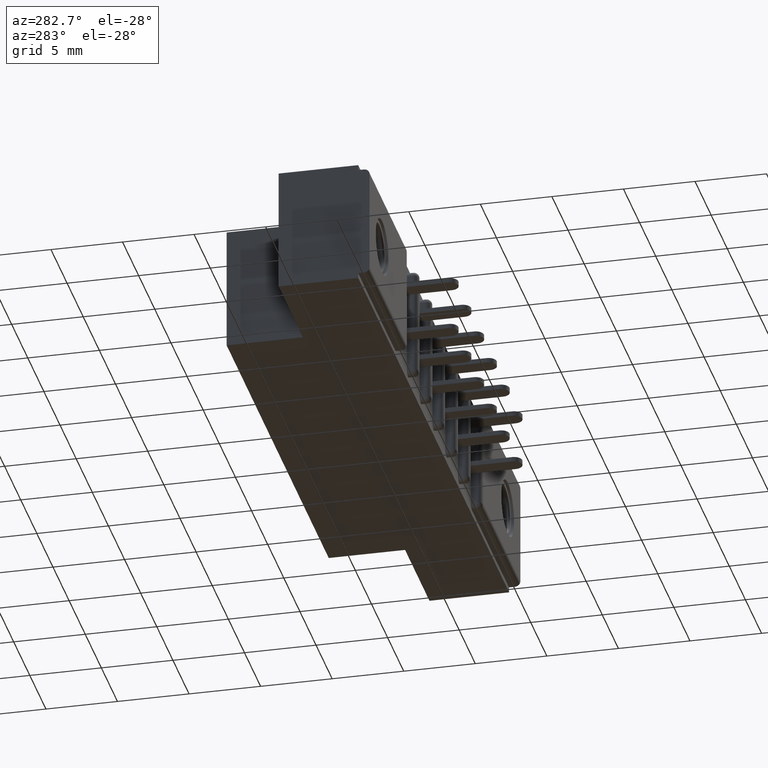
[diagram: clean part render]
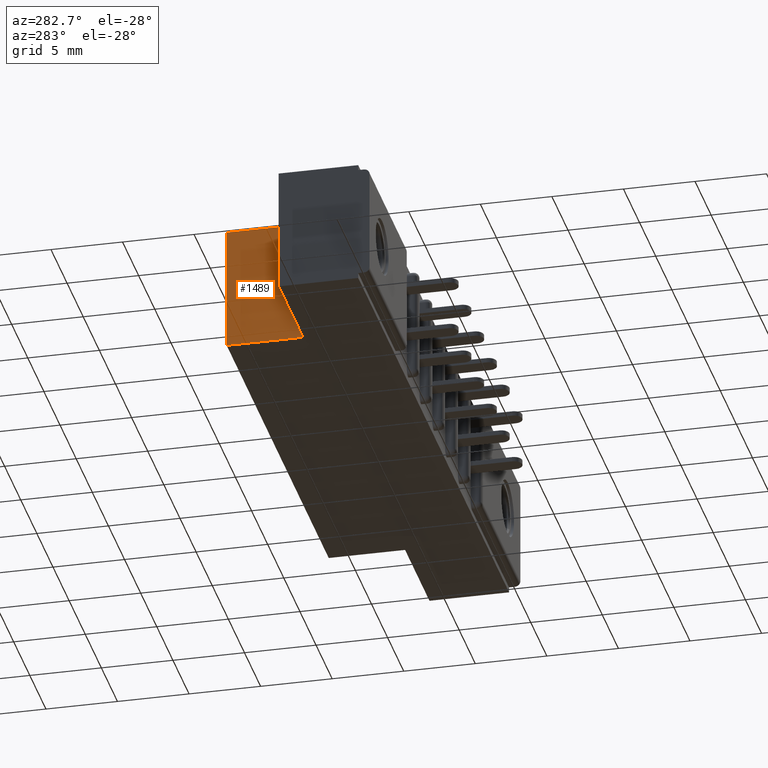
[diagram: same view with one face highlighted and labeled with its STEP entity id]
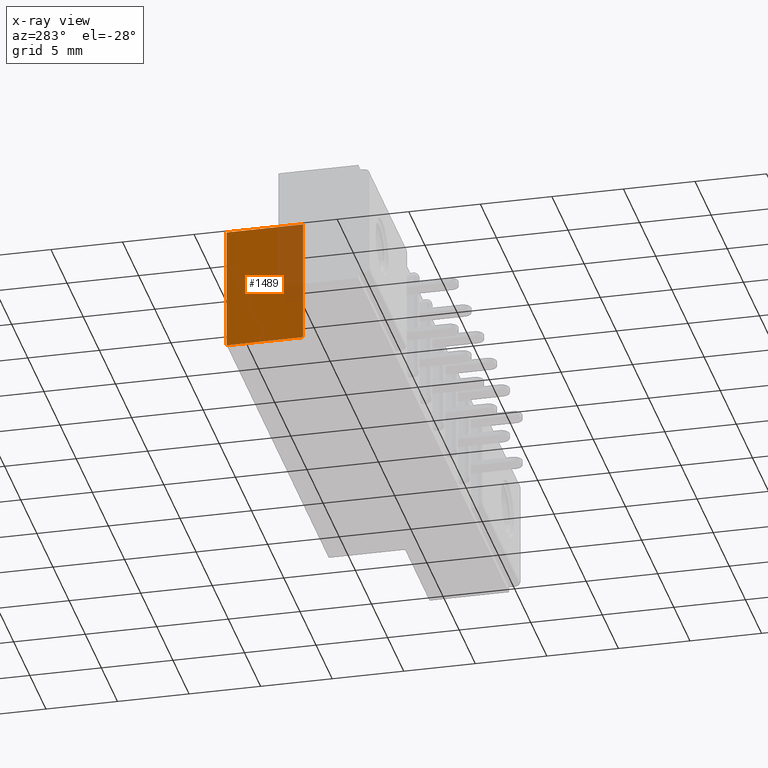
[diagram: x-ray of the same camera — body ghosted, the highlighted face saturated]
A machine part, auxiliary view. The second image highlights one B-rep face of the part: STEP entity #1489.
The next image is the same camera in x-ray: the body ghosted, the highlighted face saturated — about 21% of this face is hidden behind the body in this view.
In plain terms, the highlighted planar face has unit normal (1, 0, 0).
Its self-contained STEP definition (entity closure, byte-faithful):
#266 = CARTESIAN_POINT ( 'NONE',  ( 0.2979999999999999900, 0.4600000000000000200, 0.0000000000000000000 ) ) ;
#369 = DIRECTION ( 'NONE',  ( 5.973428557574919900E-016, 0.0000000000000000000, -1.000000000000000000 ) ) ;
#529 = DIRECTION ( 'NONE',  ( 1.000000000000000000, 0.0000000000000000000, 5.973428557574919900E-016 ) ) ;
#1369 = CARTESIAN_POINT ( 'NONE',  ( 0.2979999999999999900, 0.2500000000000000600, 0.0000000000000000000 ) ) ;
#1412 = LINE ( 'NONE', #5515, #5877 ) ;
#1474 = CARTESIAN_POINT ( 'NONE',  ( 0.2980000000000002100, 0.2500000000000000600, -0.3430000000000000300 ) ) ;
#1489 = ADVANCED_FACE ( 'NONE', ( #8637 ), #8609, .F. ) ;
#1629 = ORIENTED_EDGE ( 'NONE', *, *, #3329, .F. ) ;
#3329 = EDGE_CURVE ( 'NONE', #4157, #10269, #9468, .T. ) ;
#3755 = ORIENTED_EDGE ( 'NONE', *, *, #8072, .T. ) ;
#3918 = CARTESIAN_POINT ( 'NONE',  ( 0.2980000000000002100, 0.4600000000000000200, -0.3430000000000000300 ) ) ;
#4157 = VERTEX_POINT ( 'NONE', #1369 ) ;
#4994 = DIRECTION ( 'NONE',  ( 5.973428557574919900E-016, 0.0000000000000000000, -1.000000000000000000 ) ) ;
#5157 = VECTOR ( 'NONE', #369, 39.37007874015748100 ) ;
#5426 = EDGE_LOOP ( 'NONE', ( #3755, #7072, #1629, #8546 ) ) ;
#5515 = CARTESIAN_POINT ( 'NONE',  ( 0.2979999999999999900, 0.2500000000000000600, 0.0000000000000000000 ) ) ;
#5787 = DIRECTION ( 'NONE',  ( -0.0000000000000000000, 1.000000000000000000, -0.0000000000000000000 ) ) ;
#5877 = VECTOR ( 'NONE', #11147, 39.37007874015748100 ) ;
#6307 = CARTESIAN_POINT ( 'NONE',  ( 0.2979999999999999900, 0.4600000000000000200, 0.0000000000000000000 ) ) ;
#6733 = VECTOR ( 'NONE', #8518, 39.37007874015748100 ) ;
#7072 = ORIENTED_EDGE ( 'NONE', *, *, #8733, .F. ) ;
#7207 = AXIS2_PLACEMENT_3D ( 'NONE', #11569, #529, #4994 ) ;
#7453 = VECTOR ( 'NONE', #5787, 39.37007874015748100 ) ;
#7591 = LINE ( 'NONE', #6307, #5157 ) ;
#8072 = EDGE_CURVE ( 'NONE', #11116, #11520, #7591, .T. ) ;
#8518 = DIRECTION ( 'NONE',  ( 5.973428557574919900E-016, 0.0000000000000000000, -1.000000000000000000 ) ) ;
#8546 = ORIENTED_EDGE ( 'NONE', *, *, #8565, .T. ) ;
#8565 = EDGE_CURVE ( 'NONE', #4157, #11116, #1412, .T. ) ;
#8607 = LINE ( 'NONE', #10378, #7453 ) ;
#8609 = PLANE ( 'NONE',  #7207 ) ;
#8637 = FACE_OUTER_BOUND ( 'NONE', #5426, .T. ) ;
#8733 = EDGE_CURVE ( 'NONE', #10269, #11520, #8607, .T. ) ;
#9468 = LINE ( 'NONE', #11398, #6733 ) ;
#10269 = VERTEX_POINT ( 'NONE', #1474 ) ;
#10378 = CARTESIAN_POINT ( 'NONE',  ( 0.2980000000000002100, 0.2500000000000000600, -0.3430000000000000300 ) ) ;
#11116 = VERTEX_POINT ( 'NONE', #266 ) ;
#11147 = DIRECTION ( 'NONE',  ( -0.0000000000000000000, 1.000000000000000000, -0.0000000000000000000 ) ) ;
#11398 = CARTESIAN_POINT ( 'NONE',  ( 0.2979999999999999900, 0.2500000000000000600, 0.0000000000000000000 ) ) ;
#11520 = VERTEX_POINT ( 'NONE', #3918 ) ;
#11569 = CARTESIAN_POINT ( 'NONE',  ( 0.2979999999999999900, 0.2500000000000000600, 0.0000000000000000000 ) ) ;